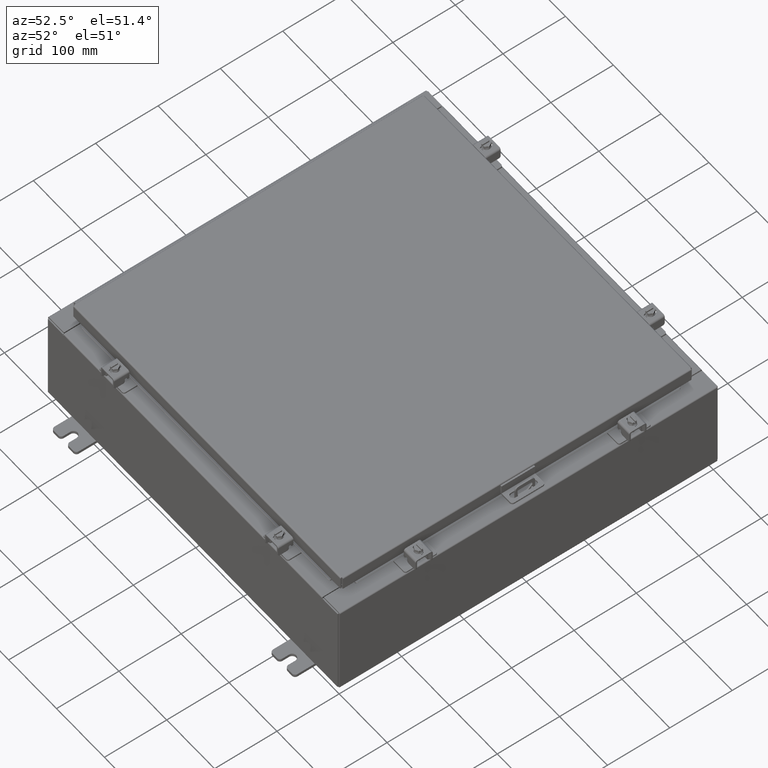
[diagram: clean part render]
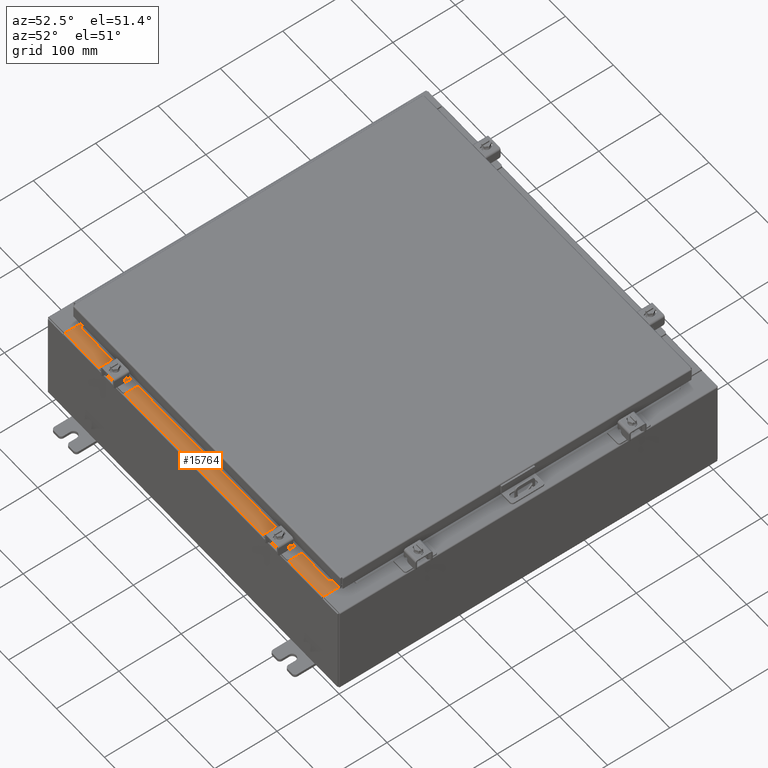
[diagram: same view with one face highlighted and labeled with its STEP entity id]
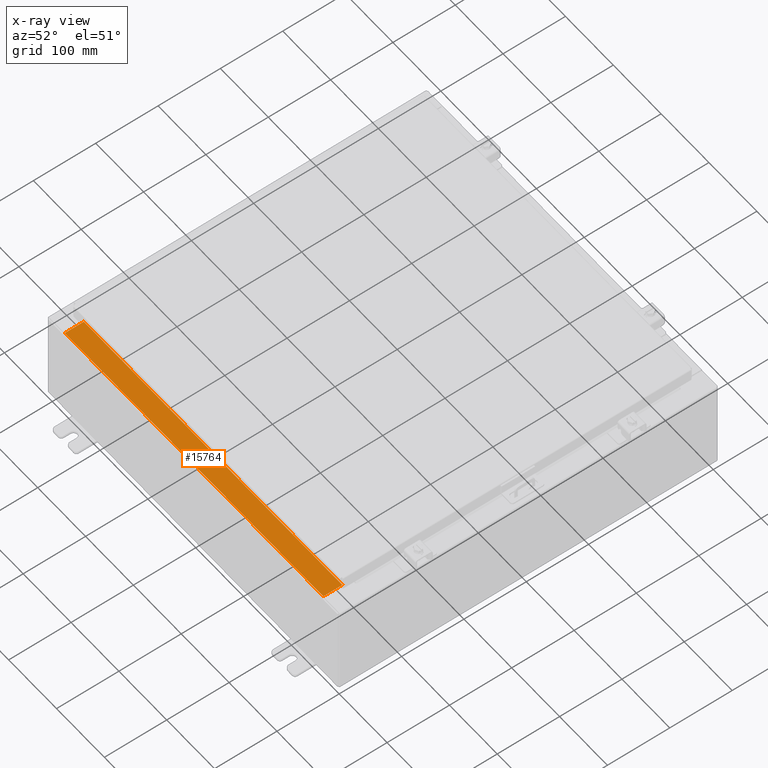
[diagram: x-ray of the same camera — body ghosted, the highlighted face saturated]
A machine part, auxiliary view. The second image highlights one B-rep face of the part: STEP entity #15764.
The next image is the same camera in x-ray: the body ghosted, the highlighted face saturated — about 0% of this face is hidden behind the body in this view.
In plain terms, the highlighted planar face has unit normal (-0, -0, 1).
Its self-contained STEP definition (entity closure, byte-faithful):
#99 = LINE ( 'NONE', #29115, #12670 ) ;
#748 = ORIENTED_EDGE ( 'NONE', *, *, #26233, .T. ) ;
#1313 = CARTESIAN_POINT ( 'NONE',  ( 10.63720000000000200, -1.300299999999999800, 3.000000000000005300 ) ) ;
#1363 = ORIENTED_EDGE ( 'NONE', *, *, #22851, .F. ) ;
#1471 = VERTEX_POINT ( 'NONE', #14798 ) ;
#1563 = CARTESIAN_POINT ( 'NONE',  ( -10.63720000000000200, -1.287299999999999200, 3.000000000000005300 ) ) ;
#2972 = DIRECTION ( 'NONE',  ( -1.000000000000000000, 0.0000000000000000000, 0.0000000000000000000 ) ) ;
#6081 = EDGE_CURVE ( 'NONE', #20661, #8841, #99, .T. ) ;
#6983 = PLANE ( 'NONE',  #22622 ) ;
#8166 = VERTEX_POINT ( 'NONE', #14876 ) ;
#8841 = VERTEX_POINT ( 'NONE', #30535 ) ;
#9382 = EDGE_LOOP ( 'NONE', ( #22883, #1363, #16294, #748 ) ) ;
#9433 = VECTOR ( 'NONE', #21544, 39.37007874015748100 ) ;
#10829 = VECTOR ( 'NONE', #28901, 39.37007874015748100 ) ;
#11613 = LINE ( 'NONE', #1313, #10829 ) ;
#12670 = VECTOR ( 'NONE', #19180, 39.37007874015748100 ) ;
#14526 = DIRECTION ( 'NONE',  ( 0.0000000000000000000, -1.000000000000000000, 3.566381192773190000E-015 ) ) ;
#14798 = CARTESIAN_POINT ( 'NONE',  ( 10.63720000000000200, -1.287299999999999900, 3.000000000000005300 ) ) ;
#14876 = CARTESIAN_POINT ( 'NONE',  ( 10.63720000000000400, -0.08769999999999965300, 3.000000000000000900 ) ) ;
#15764 = ADVANCED_FACE ( 'NONE', ( #26986 ), #6983, .T. ) ;
#16294 = ORIENTED_EDGE ( 'NONE', *, *, #31914, .F. ) ;
#16302 = VECTOR ( 'NONE', #2972, 39.37007874015748100 ) ;
#16434 = CARTESIAN_POINT ( 'NONE',  ( -2.252313287748515100E-018, -0.08770000000000000000, 3.000000000000001300 ) ) ;
#16958 = CARTESIAN_POINT ( 'NONE',  ( 0.0000000000000000000, 1.069354855923099900E-014, 3.000000000000000900 ) ) ;
#19180 = DIRECTION ( 'NONE',  ( -0.0000000000000000000, 1.000000000000000000, -3.566381192773190000E-015 ) ) ;
#20661 = VERTEX_POINT ( 'NONE', #1563 ) ;
#21544 = DIRECTION ( 'NONE',  ( -1.000000000000000000, 2.568202152506545800E-017, -9.159187855938968600E-032 ) ) ;
#22622 = AXIS2_PLACEMENT_3D ( 'NONE', #16958, #29526, #14526 ) ;
#22709 = LINE ( 'NONE', #16434, #9433 ) ;
#22851 = EDGE_CURVE ( 'NONE', #1471, #20661, #29608, .T. ) ;
#22883 = ORIENTED_EDGE ( 'NONE', *, *, #6081, .F. ) ;
#26233 = EDGE_CURVE ( 'NONE', #8166, #8841, #22709, .T. ) ;
#26986 = FACE_OUTER_BOUND ( 'NONE', #9382, .T. ) ;
#28901 = DIRECTION ( 'NONE',  ( -0.0000000000000000000, -1.000000000000000000, 3.566381192773190000E-015 ) ) ;
#29115 = CARTESIAN_POINT ( 'NONE',  ( -10.63720000000000200, -0.07469999999999973900, 3.000000000000000900 ) ) ;
#29526 = DIRECTION ( 'NONE',  ( 0.0000000000000000000, 3.566381192773190000E-015, 1.000000000000000000 ) ) ;
#29608 = LINE ( 'NONE', #30452, #16302 ) ;
#30452 = CARTESIAN_POINT ( 'NONE',  ( 10.63720000000000400, -1.287299999999999900, 3.000000000000005300 ) ) ;
#30535 = CARTESIAN_POINT ( 'NONE',  ( -10.63720000000000200, -0.08770000000000000000, 3.000000000000000900 ) ) ;
#31914 = EDGE_CURVE ( 'NONE', #8166, #1471, #11613, .T. ) ;